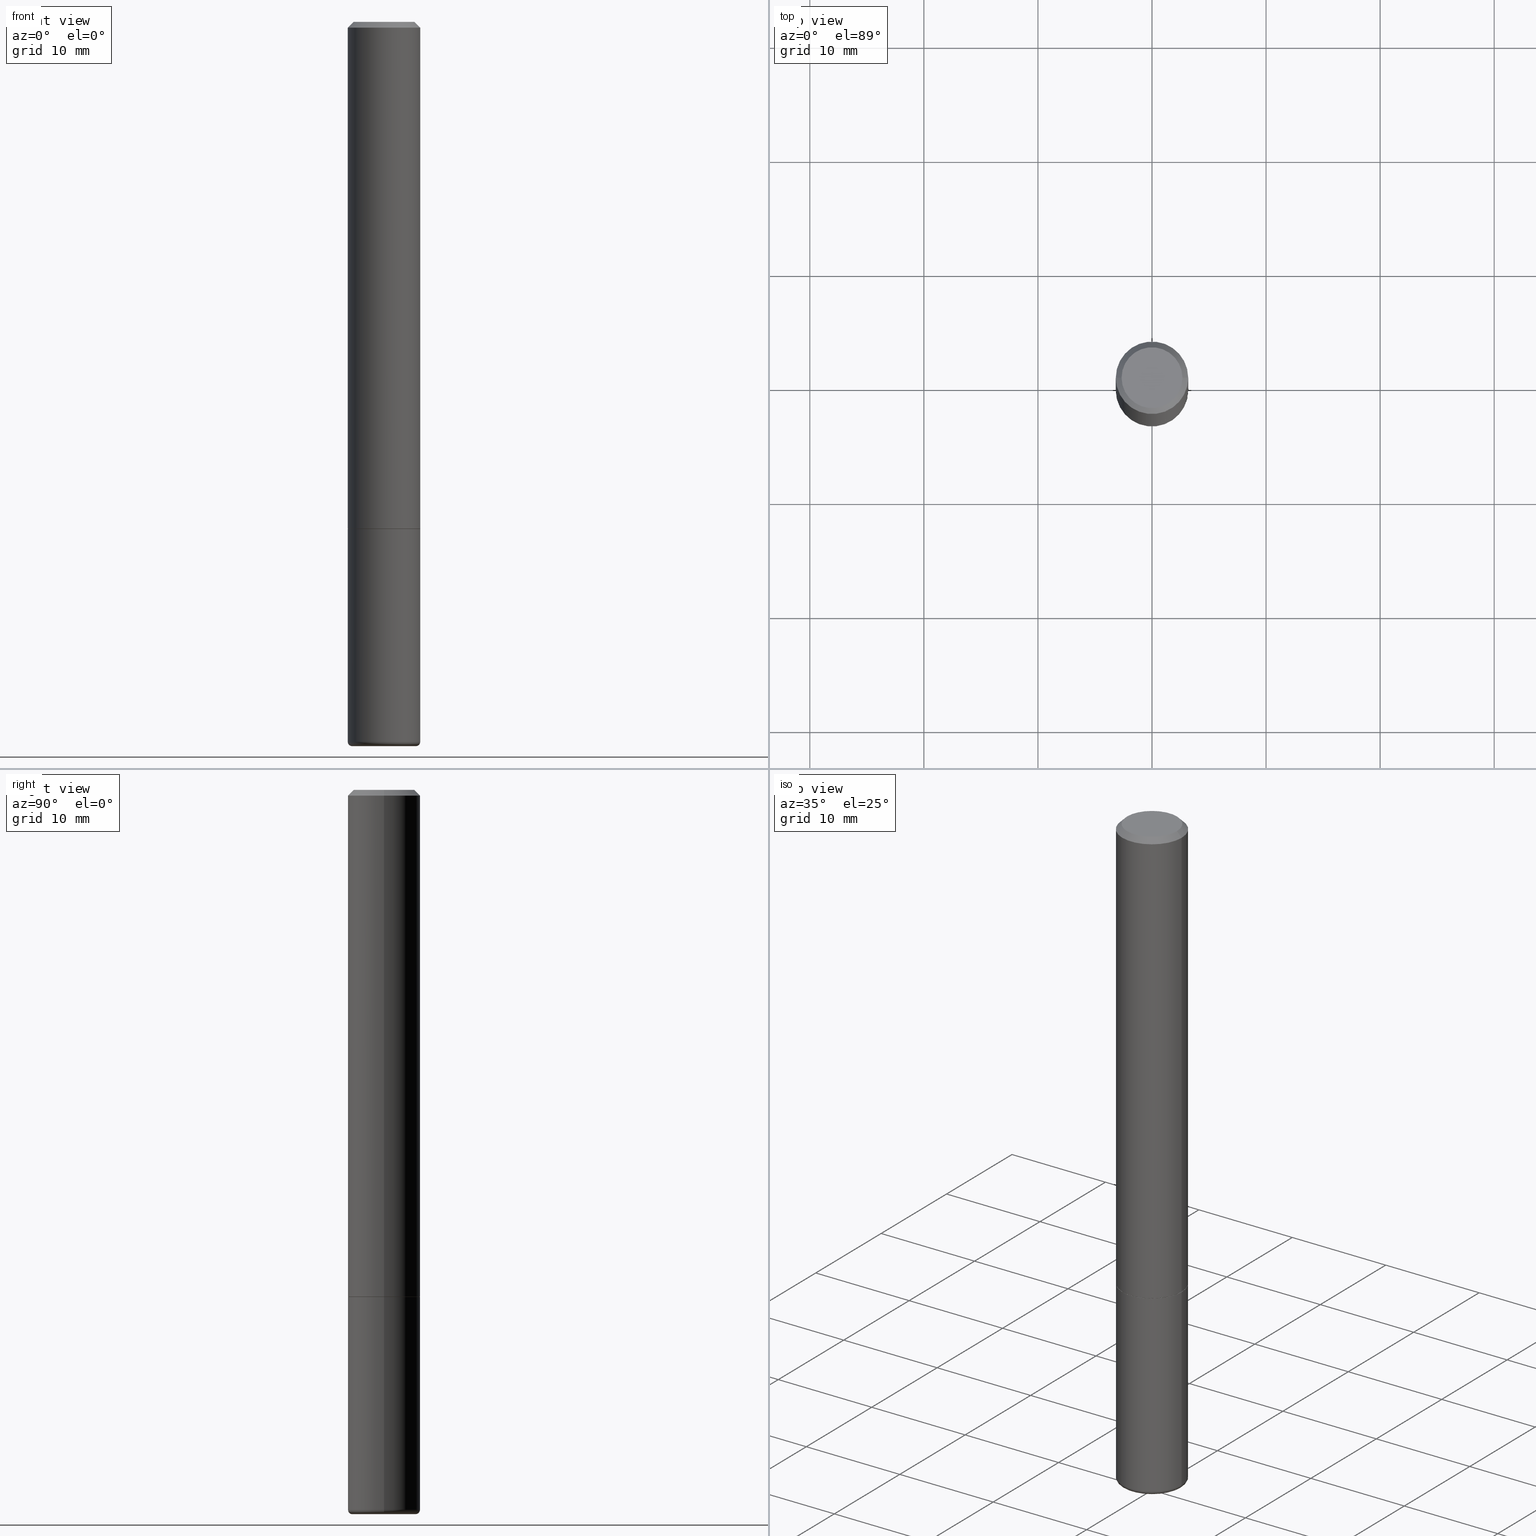
[diagram: canonical four-view strip — front | top / right | iso, engineering-drawing reading convention]
A machine part, canonical four-view strip (front | top / right | iso — engineering-drawing reading convention). The complete STEP part file that produces these views, byte-faithful:
ISO-10303-21;
HEADER;
FILE_DESCRIPTION (( 'STEP AP203' ),
    '1' );
FILE_NAME ('77118.STEP',
    '2024-03-06T16:02:26',
    ( '' ),
    ( '' ),
    'SwSTEP 2.0',
    'SolidWorks 2023',
    '' );
FILE_SCHEMA (( 'CONFIG_CONTROL_DESIGN' ));
ENDSEC;

DATA;
#1 = FACE_OUTER_BOUND ( 'NONE', #106, .T. ) ;
#2 = AXIS2_PLACEMENT_3D ( 'NONE', #319, #24, #169 ) ;
#3 = EDGE_LOOP ( 'NONE', ( #82, #157 ) ) ;
#4 = CARTESIAN_POINT ( 'NONE',  ( -0.1100000000000000006, -7.894734117689105781E-15, -2.484999999999999876 ) ) ;
#5 = DIRECTION ( 'NONE',  ( 1.000000000000000000, -6.982962677686270655E-15, 0.000000000000000000 ) ) ;
#6 = APPROVAL ( #165, 'UNSPECIFIED' ) ;
#7 = VERTEX_POINT ( 'NONE', #199 ) ;
#8 = PERSON_AND_ORGANIZATION ( #108, #326 ) ;
#9 = ORIENTED_EDGE ( 'NONE', *, *, #287, .T. ) ;
#10 = CARTESIAN_POINT ( 'NONE',  ( 6.113672015462842613E-29, -8.728703347107864943E-15, -2.500000000000000000 ) ) ;
#11 = CARTESIAN_POINT ( 'NONE',  ( 7.332110811570581229E-16, 0.1050000000000000377, -3.922166155191328542E-16 ) ) ;
#12 = AXIS2_PLACEMENT_3D ( 'NONE', #272, #399, #118 ) ;
#13 = AXIS2_PLACEMENT_3D ( 'NONE', #237, #173, #151 ) ;
#14 = ORIENTED_EDGE ( 'NONE', *, *, #41, .F. ) ;
#15 = CALENDAR_DATE ( 2024, 6, 3 ) ;
#16 = PLANE ( 'NONE',  #40 ) ;
#17 = DIRECTION ( 'NONE',  ( -2.438088387897960049E-29, 3.491481338843145188E-15, 1.000000000000000000 ) ) ;
#18 = ADVANCED_FACE ( 'NONE', ( #296 ), #234, .T. ) ;
#19 = ORIENTED_EDGE ( 'NONE', *, *, #287, .F. ) ;
#20 = PERSON_AND_ORGANIZATION ( #108, #326 ) ;
#21 = CARTESIAN_POINT ( 'NONE',  ( 6.076989983370064174E-29, -8.676331127025216680E-15, -2.484999999999999876 ) ) ;
#22 = DATE_AND_TIME ( #398, #36 ) ;
#23 = CC_DESIGN_APPROVAL ( #6, ( #289 ) ) ;
#24 = DIRECTION ( 'NONE',  ( -2.445468806185136597E-29, 3.491481338843145583E-15, 1.000000000000000000 ) ) ;
#25 = CALENDAR_DATE ( 2024, 6, 3 ) ;
#26 = MANIFOLD_SOLID_BREP ( 'Body-Move/Copy2[2]', #198 ) ;
#27 = DIRECTION ( 'NONE',  ( 0.7071067811866863506, -2.468850131083710931E-15, 0.7071067811864086838 ) ) ;
#28 = AXIS2_PLACEMENT_3D ( 'NONE', #143, #240, #293 ) ;
#29 = FACE_OUTER_BOUND ( 'NONE', #197, .T. ) ;
#30 = LINE ( 'NONE', #227, #156 ) ;
#31 = DIRECTION ( 'NONE',  ( 1.000000000000000000, -6.982962677686270655E-15, 0.000000000000000000 ) ) ;
#32 = DIRECTION ( 'NONE',  ( -2.445468806185136597E-29, 3.491481338843145583E-15, 1.000000000000000000 ) ) ;
#33 = VERTEX_POINT ( 'NONE', #38 ) ;
#34 = DATE_AND_TIME ( #230, #257 ) ;
#35 = AXIS2_PLACEMENT_3D ( 'NONE', #37, #146, #299 ) ;
#36 = LOCAL_TIME ( 11, 2, 26.00000000000000000, #226 ) ;
#37 = CARTESIAN_POINT ( 'NONE',  ( 1.252621697202263706E-45, -1.788411804456536750E-31, -5.122214988120493535E-17 ) ) ;
#38 = CARTESIAN_POINT ( 'NONE',  ( -0.1239999999999999991, -5.223720896284758045E-15, -1.750000000000000000 ) ) ;
#39 = CARTESIAN_POINT ( 'NONE',  ( 1.252621697202263706E-45, -1.788411804456536750E-31, -5.122214988120493535E-17 ) ) ;
#40 = AXIS2_PLACEMENT_3D ( 'NONE', #50, #211, #122 ) ;
#41 = EDGE_CURVE ( 'NONE', #33, #187, #132, .T. ) ;
#42 = ORIENTED_EDGE ( 'NONE', *, *, #67, .F. ) ;
#43 = PERSON_AND_ORGANIZATION ( #108, #326 ) ;
#44 = CYLINDRICAL_SURFACE ( 'NONE', #144, 0.1250000000000000000 ) ;
#45 = ORIENTED_EDGE ( 'NONE', *, *, #265, .T. ) ;
#46 = UNCERTAINTY_MEASURE_WITH_UNIT (LENGTH_MEASURE( 1.000000000000000082E-05 ), #65, 'distance_accuracy_value', 'NONE');
#47 = CARTESIAN_POINT ( 'NONE',  ( -0.1249999999999999584, 8.030407079339200406E-16, -0.02000000000000006287 ) ) ;
#48 = ORIENTED_EDGE ( 'NONE', *, *, #297, .T. ) ;
#49 = EDGE_CURVE ( 'NONE', #236, #250, #98, .T. ) ;
#50 = CARTESIAN_POINT ( 'NONE',  ( 4.279570410823989044E-29, -6.110092342975505460E-15, -1.750000000000000222 ) ) ;
#51 = CARTESIAN_POINT ( 'NONE',  ( -0.1250000000000000555, -7.788152707325091448E-15, -2.484999999999999876 ) ) ;
#52 = AXIS2_PLACEMENT_3D ( 'NONE', #233, #238, #300 ) ;
#53 = AXIS2_PLACEMENT_3D ( 'NONE', #10, #243, #208 ) ;
#54 = VERTEX_POINT ( 'NONE', #176 ) ;
#55 = FACE_OUTER_BOUND ( 'NONE', #333, .T. ) ;
#56 = CALENDAR_DATE ( 2024, 6, 3 ) ;
#57 = PLANE ( 'NONE',  #111 ) ;
#58 = APPROVAL_ROLE ( '' ) ;
#59 = DIRECTION ( 'NONE',  ( -1.000000000000000000, 7.105427357600994759E-15, 0.000000000000000000 ) ) ;
#60 = APPROVAL ( #378, 'UNSPECIFIED' ) ;
#61 = AXIS2_PLACEMENT_3D ( 'NONE', #360, #205, #31 ) ;
#62 = AXIS2_PLACEMENT_3D ( 'NONE', #271, #76, #178 ) ;
#63 = AXIS2_PLACEMENT_3D ( 'NONE', #310, #367, #388 ) ;
#64 = LOCAL_TIME ( 11, 2, 26.00000000000000000, #126 ) ;
#65 =( CONVERSION_BASED_UNIT ( 'INCH', #366 ) LENGTH_UNIT ( ) NAMED_UNIT ( #200 ) );
#66 = ORIENTED_EDGE ( 'NONE', *, *, #49, .T. ) ;
#67 = EDGE_CURVE ( 'NONE', #282, #395, #262, .T. ) ;
#68 = DIRECTION ( 'NONE',  ( 1.000000000000000000, -6.982962677686262766E-15, 0.000000000000000000 ) ) ;
#69 = AXIS2_PLACEMENT_3D ( 'NONE', #258, #32, #5 ) ;
#70 = DIRECTION ( 'NONE',  ( -2.445468806185136597E-29, 3.491481338843145583E-15, 1.000000000000000000 ) ) ;
#71 = CC_DESIGN_PERSON_AND_ORGANIZATION_ASSIGNMENT ( #121, #163, ( #289 ) ) ;
#72 = VERTEX_POINT ( 'NONE', #416 ) ;
#73 = CIRCLE ( 'NONE', #275, 0.1100000000000000006 ) ;
#74 = AXIS2_PLACEMENT_3D ( 'NONE', #80, #361, #95 ) ;
#75 = ORIENTED_EDGE ( 'NONE', *, *, #336, .F. ) ;
#76 = DIRECTION ( 'NONE',  ( 0.000000000000000000, 0.000000000000000000, 1.000000000000000000 ) ) ;
#77 = EDGE_CURVE ( 'NONE', #187, #33, #253, .T. ) ;
#78 = EDGE_CURVE ( 'NONE', #54, #304, #294, .T. ) ;
#79 = ORIENTED_EDGE ( 'NONE', *, *, #383, .F. ) ;
#80 = CARTESIAN_POINT ( 'NONE',  ( 0.000000000000000000, 0.000000000000000000, 0.000000000000000000 ) ) ;
#81 = FACE_OUTER_BOUND ( 'NONE', #305, .T. ) ;
#82 = ORIENTED_EDGE ( 'NONE', *, *, #67, .T. ) ;
#83 = DIRECTION ( 'NONE',  ( -2.445468806185136597E-29, 3.491481338843145583E-15, 1.000000000000000000 ) ) ;
#84 = VECTOR ( 'NONE', #153, 39.37007874015748143 ) ;
#85 = CC_DESIGN_APPROVAL ( #115, ( #374 ) ) ;
#86 = PERSON_AND_ORGANIZATION_ROLE ( 'design_supplier' ) ;
#87 = DIRECTION ( 'NONE',  ( -2.445468806185136597E-29, 3.491481338843145583E-15, 1.000000000000000000 ) ) ;
#88 = ADVANCED_FACE ( 'NONE', ( #99 ), #352, .T. ) ;
#89 = PERSON_AND_ORGANIZATION ( #108, #326 ) ;
#90 = AXIS2_PLACEMENT_3D ( 'NONE', #141, #105, #386 ) ;
#91 = EDGE_CURVE ( 'NONE', #311, #236, #288, .T. ) ;
#92 = CARTESIAN_POINT ( 'NONE',  ( 0.1250000000000000000, -6.982962677686288010E-15, -1.750000000000000222 ) ) ;
#93 = VECTOR ( 'NONE', #324, 39.37007874015748143 ) ;
#94 = EDGE_CURVE ( 'NONE', #72, #109, #412, .T. ) ;
#95 = DIRECTION ( 'NONE',  ( 1.000000000000000000, -6.982962677686267499E-15, 4.876176775795936353E-29 ) ) ;
#96 = DIRECTION ( 'NONE',  ( -2.445468806185136597E-29, 3.491481338843145583E-15, 1.000000000000000000 ) ) ;
#97 = ORIENTED_EDGE ( 'NONE', *, *, #290, .F. ) ;
#98 = LINE ( 'NONE', #231, #93 ) ;
#99 = FACE_OUTER_BOUND ( 'NONE', #194, .T. ) ;
#100 = AXIS2_PLACEMENT_3D ( 'NONE', #112, #370, #241 ) ;
#101 = ORIENTED_EDGE ( 'NONE', *, *, #78, .T. ) ;
#102 = LOCAL_TIME ( 11, 2, 26.00000000000000000, #283 ) ;
#103 = DIRECTION ( 'NONE',  ( -2.445468806185136597E-29, 3.491481338843145583E-15, 1.000000000000000000 ) ) ;
#104 = DIRECTION ( 'NONE',  ( 2.445468806185136597E-29, -3.491481338843145583E-15, -1.000000000000000000 ) ) ;
#105 = DIRECTION ( 'NONE',  ( -2.445468806185136597E-29, 3.491481338843145583E-15, 1.000000000000000000 ) ) ;
#106 = EDGE_LOOP ( 'NONE', ( #137, #154, #97, #371 ) ) ;
#107 = DIRECTION ( 'NONE',  ( -2.445468806185136597E-29, 3.491481338843145583E-15, 1.000000000000000000 ) ) ;
#108 = PERSON ( 'UNSPECIFIED', 'UNSPECIFIED', 'UNSPECIFIED', ('UNSPECIFIED'), ('UNSPECIFIED'), ('UNSPECIFIED') ) ;
#109 = VERTEX_POINT ( 'NONE', #47 ) ;
#110 = CARTESIAN_POINT ( 'NONE',  ( 0.000000000000000000, 0.000000000000000000, 0.000000000000000000 ) ) ;
#111 = AXIS2_PLACEMENT_3D ( 'NONE', #342, #17, #113 ) ;
#112 = CARTESIAN_POINT ( 'NONE',  ( 0.1100000000000000006, -9.444457021570706649E-15, -2.484999999999999876 ) ) ;
#113 = DIRECTION ( 'NONE',  ( 1.000000000000000000, -6.982962677686265922E-15, 4.876176775795935793E-29 ) ) ;
#114 = AXIS2_PLACEMENT_3D ( 'NONE', #247, #104, #135 ) ;
#115 = APPROVAL ( #369, 'UNSPECIFIED' ) ;
#116 = EDGE_LOOP ( 'NONE', ( #358, #380 ) ) ;
#117 = PERSON_AND_ORGANIZATION ( #108, #326 ) ;
#118 = DIRECTION ( 'NONE',  ( 1.000000000000000000, -6.982962677686262766E-15, 0.000000000000000000 ) ) ;
#119 = APPLICATION_CONTEXT ( 'configuration controlled 3d designs of mechanical parts and assemblies' ) ;
#120 = FACE_OUTER_BOUND ( 'NONE', #347, .T. ) ;
#121 = PERSON_AND_ORGANIZATION ( #108, #326 ) ;
#122 = DIRECTION ( 'NONE',  ( -1.000000000000000000, 6.982962677686265922E-15, -4.876176775795935793E-29 ) ) ;
#123 = CARTESIAN_POINT ( 'NONE',  ( -0.1250000000000000000, -6.505033315300235838E-15, -1.750000000000000222 ) ) ;
#124 = AXIS2_PLACEMENT_3D ( 'NONE', #235, #263, #381 ) ;
#125 = LOCAL_TIME ( 11, 2, 26.00000000000000000, #254 ) ;
#126 = COORDINATED_UNIVERSAL_TIME_OFFSET ( 5, 0, .BEHIND. ) ;
#127 = ADVANCED_FACE ( 'NONE', ( #120 ), #16, .F. ) ;
#128 = DATE_AND_TIME ( #56, #125 ) ;
#129 = CARTESIAN_POINT ( 'NONE',  ( 0.1250000000000000555, -9.549201461736000019E-15, -2.484999999999999876 ) ) ;
#130 = PERSON_AND_ORGANIZATION_ROLE ( 'creator' ) ;
#131 = ORIENTED_EDGE ( 'NONE', *, *, #190, .T. ) ;
#132 = CIRCLE ( 'NONE', #124, 0.1239999999999999991 ) ;
#133 = DIRECTION ( 'NONE',  ( -0.7071067811865459074, 2.468850131082240100E-15, -0.7071067811865491270 ) ) ;
#134 = DIRECTION ( 'NONE',  ( -1.000000000000000000, 6.982962677686267499E-15, 0.000000000000000000 ) ) ;
#135 = DIRECTION ( 'NONE',  ( -1.000000000000000000, 6.982962677686267499E-15, 0.000000000000000000 ) ) ;
#136 = CARTESIAN_POINT ( 'NONE',  ( -0.1250000000000000555, 8.881784197001256268E-16, -6.148668862818635730E-30 ) ) ;
#137 = ORIENTED_EDGE ( 'NONE', *, *, #204, .T. ) ;
#138 = CIRCLE ( 'NONE', #284, 0.1250000000000000000 ) ;
#139 = PRODUCT_DEFINITION ( 'UNKNOWN', '', #374, #306 ) ;
#140 = FACE_OUTER_BOUND ( 'NONE', #389, .T. ) ;
#141 = CARTESIAN_POINT ( 'NONE',  ( 4.279570410823988484E-29, -6.110092342975504671E-15, -1.750000000000000000 ) ) ;
#142 = EDGE_CURVE ( 'NONE', #7, #150, #73, .T. ) ;
#143 = CARTESIAN_POINT ( 'NONE',  ( 0.000000000000000000, 0.000000000000000000, 0.000000000000000000 ) ) ;
#144 = AXIS2_PLACEMENT_3D ( 'NONE', #188, #309, #362 ) ;
#145 =( GEOMETRIC_REPRESENTATION_CONTEXT ( 3 ) GLOBAL_UNCERTAINTY_ASSIGNED_CONTEXT ( ( #46 ) ) GLOBAL_UNIT_ASSIGNED_CONTEXT ( ( #65, #411, #322 ) ) REPRESENTATION_CONTEXT ( 'NONE', 'WORKASPACE' ) );
#146 = DIRECTION ( 'NONE',  ( -2.445468806185136597E-29, 3.491481338843145583E-15, 1.000000000000000000 ) ) ;
#147 = ORIENTED_EDGE ( 'NONE', *, *, #268, .T. ) ;
#148 = APPLICATION_PROTOCOL_DEFINITION ( 'international standard', 'config_control_design', 1994, #292 ) ;
#149 = EDGE_CURVE ( 'NONE', #7, #236, #179, .T. ) ;
#150 = VERTEX_POINT ( 'NONE', #219 ) ;
#151 = DIRECTION ( 'NONE',  ( 1.000000000000000000, -6.982962677686262766E-15, 0.000000000000000000 ) ) ;
#152 = PRODUCT ( '77118', '77118', '', ( #339 ) ) ;
#153 = DIRECTION ( 'NONE',  ( -2.445468806185136877E-29, 3.491481338843145188E-15, 1.000000000000000000 ) ) ;
#154 = ORIENTED_EDGE ( 'NONE', *, *, #328, .T. ) ;
#155 = DIRECTION ( 'NONE',  ( 1.000000000000000000, -6.982962677686267499E-15, 4.876176775795936353E-29 ) ) ;
#156 = VECTOR ( 'NONE', #27, 39.37007874015748143 ) ;
#157 = ORIENTED_EDGE ( 'NONE', *, *, #160, .T. ) ;
#158 = ORIENTED_EDGE ( 'NONE', *, *, #142, .T. ) ;
#159 = ADVANCED_BREP_SHAPE_REPRESENTATION ( '77118', ( #174, #26, #62 ), #145 ) ;
#160 = EDGE_CURVE ( 'NONE', #395, #282, #344, .T. ) ;
#161 = DATE_TIME_ROLE ( 'creation_date' ) ;
#162 = CIRCLE ( 'NONE', #218, 0.1249999999999999584 ) ;
#163 = PERSON_AND_ORGANIZATION_ROLE ( 'classification_officer' ) ;
#164 = DIRECTION ( 'NONE',  ( -2.445468806185136597E-29, 3.491481338843145583E-15, 1.000000000000000000 ) ) ;
#165 = APPROVAL_STATUS ( 'not_yet_approved' ) ;
#166 = ADVANCED_FACE ( 'NONE', ( #55 ), #44, .T. ) ;
#167 = ADVANCED_FACE ( 'NONE', ( #334 ), #331, .F. ) ;
#168 = LINE ( 'NONE', #318, #392 ) ;
#169 = DIRECTION ( 'NONE',  ( 1.000000000000000000, -6.982962677686262766E-15, 4.883557194083111780E-29 ) ) ;
#170 = AXIS2_PLACEMENT_3D ( 'NONE', #4, #402, #59 ) ;
#171 = CYLINDRICAL_SURFACE ( 'NONE', #312, 0.1250000000000000555 ) ;
#172 = CC_DESIGN_PERSON_AND_ORGANIZATION_ASSIGNMENT ( #350, #222, ( #374 ) ) ;
#173 = DIRECTION ( 'NONE',  ( -2.445468806185136597E-29, 3.491481338843145583E-15, 1.000000000000000000 ) ) ;
#174 = MANIFOLD_SOLID_BREP ( 'Body-Move/Copy2[1]', #384 ) ;
#175 = EDGE_CURVE ( 'NONE', #150, #311, #401, .T. ) ;
#176 = CARTESIAN_POINT ( 'NONE',  ( 0.1250000000000001943, -6.979471196347446580E-15, -1.749000000000000110 ) ) ;
#177 = ORIENTED_EDGE ( 'NONE', *, *, #336, .T. ) ;
#178 = DIRECTION ( 'NONE',  ( 1.000000000000000000, 0.000000000000000000, 0.000000000000000000 ) ) ;
#179 = CIRCLE ( 'NONE', #100, 0.01500000000000012955 ) ;
#180 = DIRECTION ( 'NONE',  ( -1.000000000000000000, 6.982962677686265922E-15, -4.876176775795935793E-29 ) ) ;
#181 = EDGE_LOOP ( 'NONE', ( #239, #364, #338, #203 ) ) ;
#182 = CYLINDRICAL_SURFACE ( 'NONE', #74, 0.1250000000000000555 ) ;
#183 = CARTESIAN_POINT ( 'NONE',  ( -0.1249999999999999584, 8.030407079339200406E-16, -0.02000000000000006287 ) ) ;
#184 = COORDINATED_UNIVERSAL_TIME_OFFSET ( 5, 0, .BEHIND. ) ;
#185 = CARTESIAN_POINT ( 'NONE',  ( 6.113672015462842613E-29, -8.728703347107864943E-15, -2.500000000000000000 ) ) ;
#186 = AXIS2_PLACEMENT_3D ( 'NONE', #417, #103, #329 ) ;
#187 = VERTEX_POINT ( 'NONE', #316 ) ;
#188 = CARTESIAN_POINT ( 'NONE',  ( 0.000000000000000000, 0.000000000000000000, 0.000000000000000000 ) ) ;
#189 = CARTESIAN_POINT ( 'NONE',  ( 4.890937612370288923E-31, -6.982962677686312563E-17, -0.02000000000000006287 ) ) ;
#190 = EDGE_CURVE ( 'NONE', #282, #109, #351, .T. ) ;
#191 = DIRECTION ( 'NONE',  ( -2.445468806185136597E-29, 3.491481338843145583E-15, 1.000000000000000000 ) ) ;
#192 = CONICAL_SURFACE ( 'NONE', #244, 0.1249999999999999584, 0.7853981633974460586 ) ;
#193 = CC_DESIGN_PERSON_AND_ORGANIZATION_ASSIGNMENT ( #43, #274, ( #152 ) ) ;
#194 = EDGE_LOOP ( 'NONE', ( #75, #330, #261, #343 ) ) ;
#195 = LINE ( 'NONE', #377, #302 ) ;
#196 = DIRECTION ( 'NONE',  ( 2.445468806185136597E-29, -3.491481338843145583E-15, -1.000000000000000000 ) ) ;
#197 = EDGE_LOOP ( 'NONE', ( #340, #147, #101, #19 ) ) ;
#198 = CLOSED_SHELL ( 'NONE', ( #18, #410, #260, #349, #345, #88, #308, #167 ) ) ;
#199 = CARTESIAN_POINT ( 'NONE',  ( 0.1100000000000000006, -9.496829241653354912E-15, -2.500000000000000000 ) ) ;
#200 = DIMENSIONAL_EXPONENTS ( 1.000000000000000000, 0.000000000000000000, 0.000000000000000000, 0.000000000000000000, 0.000000000000000000, 0.000000000000000000, 0.000000000000000000 ) ;
#201 = TOROIDAL_SURFACE ( 'NONE', #2, 0.1100000000000000006, 0.01500000000000012088 ) ;
#202 = EDGE_CURVE ( 'NONE', #304, #109, #162, .T. ) ;
#203 = ORIENTED_EDGE ( 'NONE', *, *, #190, .F. ) ;
#204 = EDGE_CURVE ( 'NONE', #236, #311, #138, .T. ) ;
#205 = DIRECTION ( 'NONE',  ( -2.445468806185136597E-29, 3.491481338843145583E-15, 1.000000000000000000 ) ) ;
#206 = LINE ( 'NONE', #221, #363 ) ;
#207 = EDGE_LOOP ( 'NONE', ( #217, #177, #321, #259 ) ) ;
#208 = DIRECTION ( 'NONE',  ( -1.000000000000000000, 6.982962677686265922E-15, -4.876176775795935793E-29 ) ) ;
#209 = AXIS2_PLACEMENT_3D ( 'NONE', #323, #70, #68 ) ;
#210 = CC_DESIGN_APPROVAL ( #60, ( #139 ) ) ;
#211 = DIRECTION ( 'NONE',  ( 2.438088387897960049E-29, -3.491481338843145188E-15, -1.000000000000000000 ) ) ;
#212 = PRODUCT_RELATED_PRODUCT_CATEGORY ( 'detail', '', ( #152 ) ) ;
#213 = ORIENTED_EDGE ( 'NONE', *, *, #78, .F. ) ;
#214 = FACE_OUTER_BOUND ( 'NONE', #116, .T. ) ;
#215 = ORIENTED_EDGE ( 'NONE', *, *, #175, .T. ) ;
#216 =( LENGTH_UNIT ( ) NAMED_UNIT ( * ) SI_UNIT ( $, .METRE. ) );
#217 = ORIENTED_EDGE ( 'NONE', *, *, #77, .T. ) ;
#218 = AXIS2_PLACEMENT_3D ( 'NONE', #357, #191, #405 ) ;
#219 = CARTESIAN_POINT ( 'NONE',  ( -0.1100000000000000006, -7.867629522548422746E-15, -2.500000000000000000 ) ) ;
#220 = APPROVAL_PERSON_ORGANIZATION ( #20, #115, #58 ) ;
#221 = CARTESIAN_POINT ( 'NONE',  ( 0.1249999999999999584, -9.273918764983043491E-16, -0.02000000000000006287 ) ) ;
#222 = PERSON_AND_ORGANIZATION_ROLE ( 'creator' ) ;
#223 = ADVANCED_FACE ( 'NONE', ( #140 ), #332, .T. ) ;
#224 = AXIS2_PLACEMENT_3D ( 'NONE', #11, #276, #180 ) ;
#225 = FACE_OUTER_BOUND ( 'NONE', #181, .T. ) ;
#226 = COORDINATED_UNIVERSAL_TIME_OFFSET ( 5, 0, .BEHIND. ) ;
#227 = CARTESIAN_POINT ( 'NONE',  ( 0.1239999999999999991, -6.975979715008601207E-15, -1.750000000000000000 ) ) ;
#228 = EDGE_CURVE ( 'NONE', #395, #304, #206, .T. ) ;
#229 = AXIS2_PLACEMENT_3D ( 'NONE', #269, #96, #325 ) ;
#230 = CALENDAR_DATE ( 2024, 6, 3 ) ;
#231 = CARTESIAN_POINT ( 'NONE',  ( 0.1250000000000000000, -8.728703347107833388E-16, 6.095220969744919741E-30 ) ) ;
#232 = ADVANCED_FACE ( 'NONE', ( #353 ), #201, .T. ) ;
#233 = CARTESIAN_POINT ( 'NONE',  ( 4.279570410823988484E-29, -6.110092342975504671E-15, -1.750000000000000000 ) ) ;
#234 = CONICAL_SURFACE ( 'NONE', #209, 0.1239999999999999991, 0.7853981633976446775 ) ;
#235 = CARTESIAN_POINT ( 'NONE',  ( 4.279570410823988484E-29, -6.110092342975504671E-15, -1.750000000000000000 ) ) ;
#236 = VERTEX_POINT ( 'NONE', #129 ) ;
#237 = CARTESIAN_POINT ( 'NONE',  ( 4.279570410823989044E-29, -6.110092342975505460E-15, -1.750000000000000222 ) ) ;
#238 = DIRECTION ( 'NONE',  ( -2.445468806185136597E-29, 3.491481338843145583E-15, 1.000000000000000000 ) ) ;
#239 = ORIENTED_EDGE ( 'NONE', *, *, #160, .F. ) ;
#240 = DIRECTION ( 'NONE',  ( -2.445468806185136597E-29, 3.491481338843145583E-15, 1.000000000000000000 ) ) ;
#241 = DIRECTION ( 'NONE',  ( 1.000000000000000000, -6.982962677686207546E-15, 0.000000000000000000 ) ) ;
#242 = EDGE_LOOP ( 'NONE', ( #314, #42, #131, #9 ) ) ;
#243 = DIRECTION ( 'NONE',  ( 2.438088387897960049E-29, -3.491481338843145188E-15, -1.000000000000000000 ) ) ;
#244 = AXIS2_PLACEMENT_3D ( 'NONE', #408, #196, #134 ) ;
#245 = VECTOR ( 'NONE', #133, 39.37007874015748143 ) ;
#246 = DIRECTION ( 'NONE',  ( 0.7071067811865459074, -7.319954787623249734E-15, -0.7071067811865491270 ) ) ;
#247 = CARTESIAN_POINT ( 'NONE',  ( 4.890937612370288923E-31, -6.982962677686312563E-17, -0.02000000000000006287 ) ) ;
#248 = CARTESIAN_POINT ( 'NONE',  ( -0.1050000000000000377, 7.681258945454890818E-16, -5.122214988121018004E-17 ) ) ;
#249 = EDGE_CURVE ( 'NONE', #187, #54, #30, .T. ) ;
#250 = VERTEX_POINT ( 'NONE', #92 ) ;
#251 = ORIENTED_EDGE ( 'NONE', *, *, #383, .T. ) ;
#252 = DATE_AND_TIME ( #15, #102 ) ;
#253 = CIRCLE ( 'NONE', #90, 0.1239999999999999991 ) ;
#254 = COORDINATED_UNIVERSAL_TIME_OFFSET ( 5, 0, .BEHIND. ) ;
#255 = APPROVAL_DATE_TIME ( #128, #6 ) ;
#256 = CIRCLE ( 'NONE', #13, 0.1250000000000000000 ) ;
#257 = LOCAL_TIME ( 11, 2, 26.00000000000000000, #184 ) ;
#258 = CARTESIAN_POINT ( 'NONE',  ( 6.113672015462842613E-29, -8.728703347107864943E-15, -2.500000000000000000 ) ) ;
#259 = ORIENTED_EDGE ( 'NONE', *, *, #249, .F. ) ;
#260 = ADVANCED_FACE ( 'NONE', ( #225 ), #192, .T. ) ;
#261 = ORIENTED_EDGE ( 'NONE', *, *, #249, .T. ) ;
#262 = CIRCLE ( 'NONE', #35, 0.1050000000000000377 ) ;
#263 = DIRECTION ( 'NONE',  ( -2.445468806185136597E-29, 3.491481338843145583E-15, 1.000000000000000000 ) ) ;
#264 = CARTESIAN_POINT ( 'NONE',  ( 0.1250000000000000555, -8.728703347107838319E-16, 6.095220969744923244E-30 ) ) ;
#265 = EDGE_CURVE ( 'NONE', #150, #7, #414, .T. ) ;
#266 = CIRCLE ( 'NONE', #229, 0.1250000000000001943 ) ;
#267 = PLANE ( 'NONE',  #53 ) ;
#268 = EDGE_CURVE ( 'NONE', #72, #54, #266, .T. ) ;
#269 = CARTESIAN_POINT ( 'NONE',  ( 4.277124942017804562E-29, -6.106600861636661664E-15, -1.749000000000000110 ) ) ;
#270 = ORIENTED_EDGE ( 'NONE', *, *, #149, .F. ) ;
#271 = CARTESIAN_POINT ( 'NONE',  ( 0.000000000000000000, 0.000000000000000000, 0.000000000000000000 ) ) ;
#272 = CARTESIAN_POINT ( 'NONE',  ( 4.279570410823989044E-29, -6.110092342975505460E-15, -1.750000000000000222 ) ) ;
#273 = ORIENTED_EDGE ( 'NONE', *, *, #91, .F. ) ;
#274 = PERSON_AND_ORGANIZATION_ROLE ( 'design_owner' ) ;
#275 = AXIS2_PLACEMENT_3D ( 'NONE', #185, #83, #391 ) ;
#276 = DIRECTION ( 'NONE',  ( 2.438088387897960049E-29, -3.491481338843145188E-15, -1.000000000000000000 ) ) ;
#277 = DIRECTION ( 'NONE',  ( 1.000000000000000000, -6.982962677686267499E-15, 0.000000000000000000 ) ) ;
#278 = CC_DESIGN_PERSON_AND_ORGANIZATION_ASSIGNMENT ( #117, #130, ( #139 ) ) ;
#279 = ORIENTED_EDGE ( 'NONE', *, *, #202, .F. ) ;
#280 = DATE_TIME_ROLE ( 'classification_date' ) ;
#281 = DIRECTION ( 'NONE',  ( -2.445468806185136597E-29, 3.491481338843145583E-15, 1.000000000000000000 ) ) ;
#282 = VERTEX_POINT ( 'NONE', #248 ) ;
#283 = COORDINATED_UNIVERSAL_TIME_OFFSET ( 5, 0, .BEHIND. ) ;
#284 = AXIS2_PLACEMENT_3D ( 'NONE', #21, #164, #403 ) ;
#285 = DIRECTION ( 'NONE',  ( -2.445468806185136877E-29, 3.491481338843145188E-15, 1.000000000000000000 ) ) ;
#286 = SECURITY_CLASSIFICATION_LEVEL ( 'unclassified' ) ;
#287 = EDGE_CURVE ( 'NONE', #109, #304, #298, .T. ) ;
#288 = CIRCLE ( 'NONE', #61, 0.1250000000000000000 ) ;
#289 = SECURITY_CLASSIFICATION ( '', '', #286 ) ;
#290 = EDGE_CURVE ( 'NONE', #250, #291, #373, .T. ) ;
#291 = VERTEX_POINT ( 'NONE', #123 ) ;
#292 = APPLICATION_CONTEXT ( 'configuration controlled 3d designs of mechanical parts and assemblies' ) ;
#293 = DIRECTION ( 'NONE',  ( 1.000000000000000000, -6.982962677686266711E-15, 4.876176775795935793E-29 ) ) ;
#294 = LINE ( 'NONE', #264, #379 ) ;
#295 = ORIENTED_EDGE ( 'NONE', *, *, #91, .T. ) ;
#296 = FACE_OUTER_BOUND ( 'NONE', #207, .T. ) ;
#297 = EDGE_CURVE ( 'NONE', #54, #72, #413, .T. ) ;
#298 = CIRCLE ( 'NONE', #376, 0.1249999999999999584 ) ;
#299 = DIRECTION ( 'NONE',  ( 1.000000000000000000, -6.982962677686267499E-15, 4.874400871621236533E-29 ) ) ;
#300 = DIRECTION ( 'NONE',  ( 1.000000000000000000, -6.982962677686262766E-15, 0.000000000000000000 ) ) ;
#301 = FACE_OUTER_BOUND ( 'NONE', #242, .T. ) ;
#302 = VECTOR ( 'NONE', #320, 39.37007874015748143 ) ;
#303 = ORIENTED_EDGE ( 'NONE', *, *, #290, .T. ) ;
#304 = VERTEX_POINT ( 'NONE', #335 ) ;
#305 = EDGE_LOOP ( 'NONE', ( #356, #14 ) ) ;
#306 = DESIGN_CONTEXT ( 'detailed design', #119, 'design' ) ;
#307 = APPROVAL_DATE_TIME ( #34, #60 ) ;
#308 = ADVANCED_FACE ( 'NONE', ( #81 ), #57, .F. ) ;
#309 = DIRECTION ( 'NONE',  ( -2.445468806185136597E-29, 3.491481338843145583E-15, 1.000000000000000000 ) ) ;
#310 = CARTESIAN_POINT ( 'NONE',  ( 4.277124942017804562E-29, -6.106600861636661664E-15, -1.749000000000000110 ) ) ;
#311 = VERTEX_POINT ( 'NONE', #51 ) ;
#312 = AXIS2_PLACEMENT_3D ( 'NONE', #110, #107, #155 ) ;
#313 = ORIENTED_EDGE ( 'NONE', *, *, #204, .F. ) ;
#314 = ORIENTED_EDGE ( 'NONE', *, *, #228, .F. ) ;
#315 = AXIS2_PLACEMENT_3D ( 'NONE', #39, #87, #346 ) ;
#316 = CARTESIAN_POINT ( 'NONE',  ( 0.1239999999999999991, -6.975979715008601207E-15, -1.750000000000000000 ) ) ;
#317 = CC_DESIGN_DATE_AND_TIME_ASSIGNMENT ( #22, #161, ( #139 ) ) ;
#318 = CARTESIAN_POINT ( 'NONE',  ( -0.1250000000000000000, 8.881784197001252323E-16, -6.148668862818632227E-30 ) ) ;
#319 = CARTESIAN_POINT ( 'NONE',  ( 6.076989983370064174E-29, -8.676331127025216680E-15, -2.484999999999999876 ) ) ;
#320 = DIRECTION ( 'NONE',  ( -0.7071067811866863506, 7.493145998870855876E-15, 0.7071067811864086838 ) ) ;
#321 = ORIENTED_EDGE ( 'NONE', *, *, #297, .F. ) ;
#322 =( NAMED_UNIT ( * ) SI_UNIT ( $, .STERADIAN. ) SOLID_ANGLE_UNIT ( ) );
#323 = CARTESIAN_POINT ( 'NONE',  ( 4.279570410823988484E-29, -6.110092342975504671E-15, -1.750000000000000000 ) ) ;
#324 = DIRECTION ( 'NONE',  ( -2.445468806185136877E-29, 3.491481338843145188E-15, 1.000000000000000000 ) ) ;
#325 = DIRECTION ( 'NONE',  ( 1.000000000000000000, -6.982962677686267499E-15, 0.000000000000000000 ) ) ;
#326 = ORGANIZATION ( 'UNSPECIFIED', 'UNSPECIFIED', '' ) ;
#327 = ORIENTED_EDGE ( 'NONE', *, *, #94, .T. ) ;
#328 = EDGE_CURVE ( 'NONE', #311, #291, #168, .T. ) ;
#329 = DIRECTION ( 'NONE',  ( 1.000000000000000000, -6.982962677686262766E-15, 4.883557194083111780E-29 ) ) ;
#330 = ORIENTED_EDGE ( 'NONE', *, *, #41, .T. ) ;
#331 = PLANE ( 'NONE',  #224 ) ;
#332 = TOROIDAL_SURFACE ( 'NONE', #186, 0.1100000000000000006, 0.01500000000000012088 ) ;
#333 = EDGE_LOOP ( 'NONE', ( #368, #295, #66, #79 ) ) ;
#334 = FACE_OUTER_BOUND ( 'NONE', #3, .T. ) ;
#335 = CARTESIAN_POINT ( 'NONE',  ( 0.1249999999999999584, -9.273918764983043491E-16, -0.02000000000000006287 ) ) ;
#336 = EDGE_CURVE ( 'NONE', #33, #72, #195, .T. ) ;
#337 = CC_DESIGN_PERSON_AND_ORGANIZATION_ASSIGNMENT ( #89, #86, ( #374 ) ) ;
#338 = ORIENTED_EDGE ( 'NONE', *, *, #202, .T. ) ;
#339 = MECHANICAL_CONTEXT ( 'NONE', #292, 'mechanical' ) ;
#340 = ORIENTED_EDGE ( 'NONE', *, *, #94, .F. ) ;
#341 = CARTESIAN_POINT ( 'NONE',  ( 0.1050000000000000377, -8.238720831321576644E-16, -5.122214988119949344E-17 ) ) ;
#342 = CARTESIAN_POINT ( 'NONE',  ( 4.279570410823989044E-29, -6.110092342975505460E-15, -1.750000000000000222 ) ) ;
#343 = ORIENTED_EDGE ( 'NONE', *, *, #268, .F. ) ;
#344 = CIRCLE ( 'NONE', #315, 0.1050000000000000377 ) ;
#345 = ADVANCED_FACE ( 'NONE', ( #29 ), #171, .T. ) ;
#346 = DIRECTION ( 'NONE',  ( 1.000000000000000000, -6.982962677686267499E-15, 4.874400871621236533E-29 ) ) ;
#347 = EDGE_LOOP ( 'NONE', ( #303, #251 ) ) ;
#348 = APPROVAL_ROLE ( '' ) ;
#349 = ADVANCED_FACE ( 'NONE', ( #301 ), #406, .T. ) ;
#350 = PERSON_AND_ORGANIZATION ( #108, #326 ) ;
#351 = LINE ( 'NONE', #183, #245 ) ;
#352 = CONICAL_SURFACE ( 'NONE', #52, 0.1239999999999999991, 0.7853981633976446775 ) ;
#353 = FACE_OUTER_BOUND ( 'NONE', #409, .T. ) ;
#354 = APPROVAL_ROLE ( '' ) ;
#355 = CC_DESIGN_DATE_AND_TIME_ASSIGNMENT ( #252, #280, ( #289 ) ) ;
#356 = ORIENTED_EDGE ( 'NONE', *, *, #77, .F. ) ;
#357 = CARTESIAN_POINT ( 'NONE',  ( 4.890937612370288923E-31, -6.982962677686312563E-17, -0.02000000000000006287 ) ) ;
#358 = ORIENTED_EDGE ( 'NONE', *, *, #142, .F. ) ;
#359 = CYLINDRICAL_SURFACE ( 'NONE', #28, 0.1250000000000000000 ) ;
#360 = CARTESIAN_POINT ( 'NONE',  ( 6.076989983370064174E-29, -8.676331127025216680E-15, -2.484999999999999876 ) ) ;
#361 = DIRECTION ( 'NONE',  ( -2.445468806185136597E-29, 3.491481338843145583E-15, 1.000000000000000000 ) ) ;
#362 = DIRECTION ( 'NONE',  ( 1.000000000000000000, -6.982962677686266711E-15, 4.876176775795935793E-29 ) ) ;
#363 = VECTOR ( 'NONE', #246, 39.37007874015748143 ) ;
#364 = ORIENTED_EDGE ( 'NONE', *, *, #228, .T. ) ;
#365 = EDGE_LOOP ( 'NONE', ( #48, #327, #279, #213 ) ) ;
#366 = LENGTH_MEASURE_WITH_UNIT ( LENGTH_MEASURE( 0.02539999999999999897 ), #216 );
#367 = DIRECTION ( 'NONE',  ( -2.445468806185136597E-29, 3.491481338843145583E-15, 1.000000000000000000 ) ) ;
#368 = ORIENTED_EDGE ( 'NONE', *, *, #328, .F. ) ;
#369 = APPROVAL_STATUS ( 'not_yet_approved' ) ;
#370 = DIRECTION ( 'NONE',  ( -6.982962677686266711E-15, -1.000000000000000000, 3.491481338843145583E-15 ) ) ;
#371 = ORIENTED_EDGE ( 'NONE', *, *, #49, .F. ) ;
#372 = APPROVAL_DATE_TIME ( #375, #115 ) ;
#373 = CIRCLE ( 'NONE', #12, 0.1250000000000000000 ) ;
#374 = PRODUCT_DEFINITION_FORMATION_WITH_SPECIFIED_SOURCE ( 'ANY', '', #152, .NOT_KNOWN. ) ;
#375 = DATE_AND_TIME ( #25, #64 ) ;
#376 = AXIS2_PLACEMENT_3D ( 'NONE', #189, #281, #277 ) ;
#377 = CARTESIAN_POINT ( 'NONE',  ( -0.1239999999999999991, -5.229019350632980447E-15, -1.750000000000000000 ) ) ;
#378 = APPROVAL_STATUS ( 'not_yet_approved' ) ;
#379 = VECTOR ( 'NONE', #382, 39.37007874015748143 ) ;
#380 = ORIENTED_EDGE ( 'NONE', *, *, #265, .F. ) ;
#381 = DIRECTION ( 'NONE',  ( 1.000000000000000000, -6.982962677686262766E-15, 0.000000000000000000 ) ) ;
#382 = DIRECTION ( 'NONE',  ( -2.445468806185136877E-29, 3.491481338843145188E-15, 1.000000000000000000 ) ) ;
#383 = EDGE_CURVE ( 'NONE', #291, #250, #256, .T. ) ;
#384 = CLOSED_SHELL ( 'NONE', ( #390, #223, #127, #166, #232, #404 ) ) ;
#385 = APPROVAL_PERSON_ORGANIZATION ( #8, #60, #354 ) ;
#386 = DIRECTION ( 'NONE',  ( 1.000000000000000000, -6.982962677686262766E-15, 0.000000000000000000 ) ) ;
#387 = APPLICATION_PROTOCOL_DEFINITION ( 'international standard', 'config_control_design', 1994, #119 ) ;
#388 = DIRECTION ( 'NONE',  ( 1.000000000000000000, -6.982962677686267499E-15, 0.000000000000000000 ) ) ;
#389 = EDGE_LOOP ( 'NONE', ( #158, #215, #313, #270 ) ) ;
#390 = ADVANCED_FACE ( 'NONE', ( #1 ), #359, .T. ) ;
#391 = DIRECTION ( 'NONE',  ( 1.000000000000000000, -6.982962677686270655E-15, 0.000000000000000000 ) ) ;
#392 = VECTOR ( 'NONE', #285, 39.37007874015748143 ) ;
#393 = ORIENTED_EDGE ( 'NONE', *, *, #175, .F. ) ;
#394 = FACE_OUTER_BOUND ( 'NONE', #365, .T. ) ;
#395 = VERTEX_POINT ( 'NONE', #341 ) ;
#396 = SHAPE_DEFINITION_REPRESENTATION ( #418, #159 ) ;
#397 = ORIENTED_EDGE ( 'NONE', *, *, #149, .T. ) ;
#398 = CALENDAR_DATE ( 2024, 6, 3 ) ;
#399 = DIRECTION ( 'NONE',  ( -2.445468806185136597E-29, 3.491481338843145583E-15, 1.000000000000000000 ) ) ;
#400 = PERSON_AND_ORGANIZATION ( #108, #326 ) ;
#401 = CIRCLE ( 'NONE', #170, 0.01500000000000012955 ) ;
#402 = DIRECTION ( 'NONE',  ( 7.105427357601001859E-15, 1.000000000000000000, -3.491481338843145583E-15 ) ) ;
#403 = DIRECTION ( 'NONE',  ( 1.000000000000000000, -6.982962677686270655E-15, 0.000000000000000000 ) ) ;
#404 = ADVANCED_FACE ( 'NONE', ( #214 ), #267, .T. ) ;
#405 = DIRECTION ( 'NONE',  ( 1.000000000000000000, -6.982962677686267499E-15, 0.000000000000000000 ) ) ;
#406 = CONICAL_SURFACE ( 'NONE', #114, 0.1249999999999999584, 0.7853981633974460586 ) ;
#407 = APPROVAL_PERSON_ORGANIZATION ( #400, #6, #348 ) ;
#408 = CARTESIAN_POINT ( 'NONE',  ( 4.890937612370288923E-31, -6.982962677686312563E-17, -0.02000000000000006287 ) ) ;
#409 = EDGE_LOOP ( 'NONE', ( #393, #45, #397, #273 ) ) ;
#410 = ADVANCED_FACE ( 'NONE', ( #394 ), #182, .T. ) ;
#411 =( NAMED_UNIT ( * ) PLANE_ANGLE_UNIT ( ) SI_UNIT ( $, .RADIAN. ) );
#412 = LINE ( 'NONE', #136, #84 ) ;
#413 = CIRCLE ( 'NONE', #63, 0.1250000000000001943 ) ;
#414 = CIRCLE ( 'NONE', #69, 0.1100000000000000006 ) ;
#415 = CC_DESIGN_SECURITY_CLASSIFICATION ( #289, ( #374 ) ) ;
#416 = CARTESIAN_POINT ( 'NONE',  ( -0.1250000000000001943, -2.200036824506633304E-15, -1.749000000000000110 ) ) ;
#417 = CARTESIAN_POINT ( 'NONE',  ( 6.076989983370064174E-29, -8.676331127025216680E-15, -2.484999999999999876 ) ) ;
#418 = PRODUCT_DEFINITION_SHAPE ( 'NONE', 'NONE',  #139 ) ;
ENDSEC;
END-ISO-10303-21;
